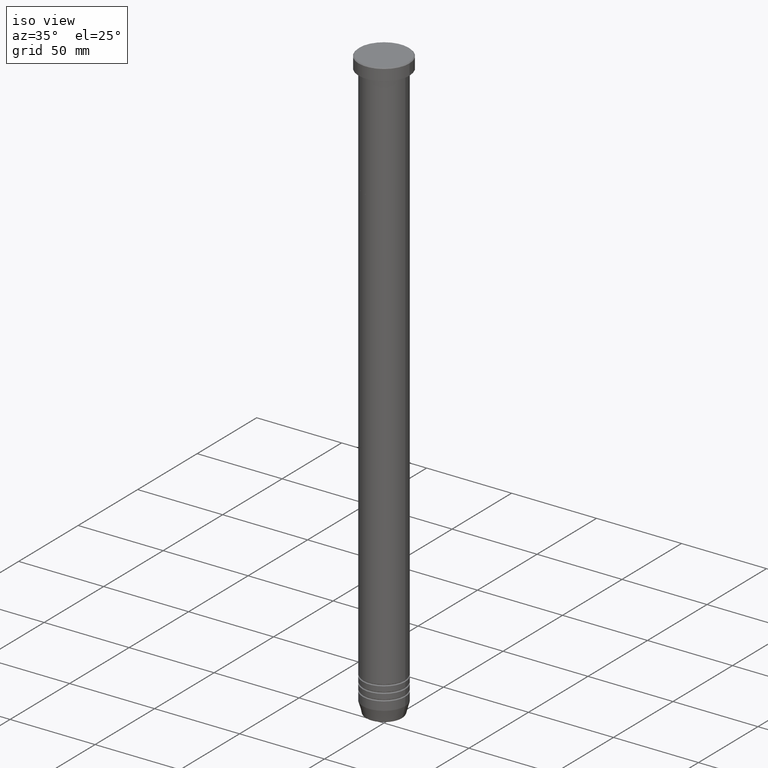
[diagram: clean part render]
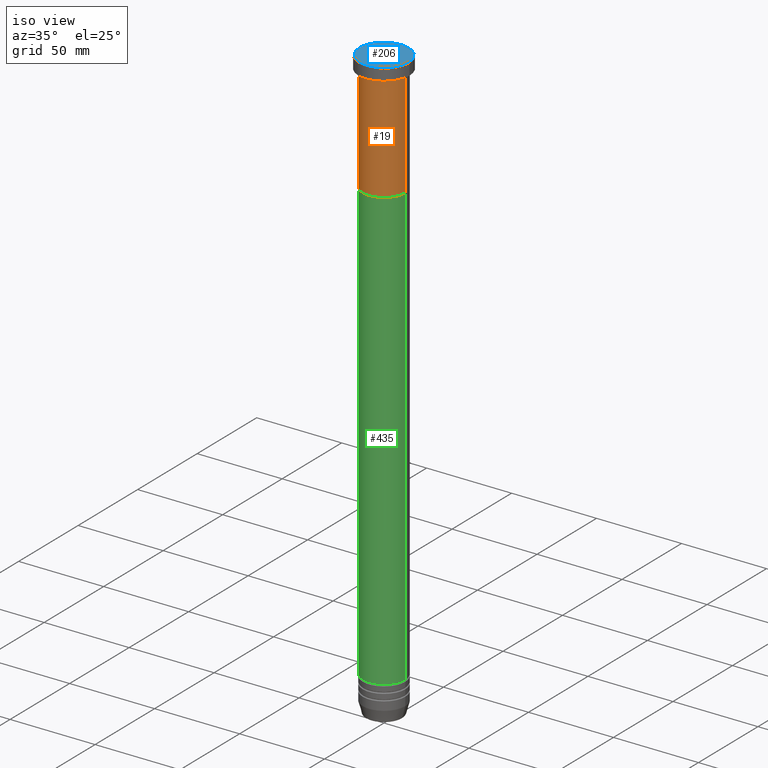
[diagram: same view with three faces highlighted in distinct colors, each labeled with its STEP entity id]
A machine part, iso view with three faces highlighted in distinct colors.
Their STEP definitions:

[orange] entity #19 — the highlighted cylindrical surface (edge-blend (fillet) strip) has radius 12.5 mm, axis along (-0, -0, 1).
#4 = EDGE_LOOP ( 'NONE', ( #1005, #618, #139, #812 ) ) ;
#7 = DIRECTION ( 'NONE',  ( -0.000000000000000000, -0.000000000000000000, 1.000000000000000000 ) ) ;
#19 = ADVANCED_FACE ( 'NONE', ( #91 ), #584, .T. ) ;
#55 = VERTEX_POINT ( 'NONE', #410 ) ;
#91 = FACE_OUTER_BOUND ( 'NONE', #4, .T. ) ;
#108 = CARTESIAN_POINT ( 'NONE',  ( 0.000000000000000000, 0.000000000000000000, 0.000000000000000000 ) ) ;
#114 = DIRECTION ( 'NONE',  ( -0.000000000000000000, -0.000000000000000000, 1.000000000000000000 ) ) ;
#119 = AXIS2_PLACEMENT_3D ( 'NONE', #108, #347, #654 ) ;
#139 = ORIENTED_EDGE ( 'NONE', *, *, #958, .T. ) ;
#140 = EDGE_CURVE ( 'NONE', #55, #511, #891, .T. ) ;
#256 = VERTEX_POINT ( 'NONE', #394 ) ;
#297 = EDGE_CURVE ( 'NONE', #256, #592, #604, .T. ) ;
#318 = DIRECTION ( 'NONE',  ( -0.000000000000000000, -0.000000000000000000, 1.000000000000000000 ) ) ;
#347 = DIRECTION ( 'NONE',  ( -0.000000000000000000, -0.000000000000000000, 1.000000000000000000 ) ) ;
#351 = AXIS2_PLACEMENT_3D ( 'NONE', #354, #672, #676 ) ;
#354 = CARTESIAN_POINT ( 'NONE',  ( 0.000000000000000000, 0.000000000000000000, -70.00000000000000000 ) ) ;
#357 = CARTESIAN_POINT ( 'NONE',  ( 12.50000000000000000, 0.000000000000000000, -70.00000000000000000 ) ) ;
#367 = VECTOR ( 'NONE', #7, 1000.000000000000000 ) ;
#378 = CARTESIAN_POINT ( 'NONE',  ( 12.50000000000000000, 0.000000000000000000, -8.000000000000000000 ) ) ;
#394 = CARTESIAN_POINT ( 'NONE',  ( -12.50000000000000000, 1.530808498934191521E-15, -8.000000000000000000 ) ) ;
#410 = CARTESIAN_POINT ( 'NONE',  ( -12.50000000000000000, 1.530808498934191521E-15, -70.00000000000000000 ) ) ;
#411 = LINE ( 'NONE', #741, #643 ) ;
#503 = LINE ( 'NONE', #912, #367 ) ;
#511 = VERTEX_POINT ( 'NONE', #357 ) ;
#584 = CYLINDRICAL_SURFACE ( 'NONE', #119, 12.50000000000000000 ) ;
#592 = VERTEX_POINT ( 'NONE', #378 ) ;
#604 = CIRCLE ( 'NONE', #632, 12.50000000000000000 ) ;
#618 = ORIENTED_EDGE ( 'NONE', *, *, #140, .T. ) ;
#632 = AXIS2_PLACEMENT_3D ( 'NONE', #723, #318, #799 ) ;
#643 = VECTOR ( 'NONE', #114, 1000.000000000000000 ) ;
#654 = DIRECTION ( 'NONE',  ( 1.000000000000000000, 0.000000000000000000, 0.000000000000000000 ) ) ;
#672 = DIRECTION ( 'NONE',  ( -0.000000000000000000, -0.000000000000000000, 1.000000000000000000 ) ) ;
#676 = DIRECTION ( 'NONE',  ( 1.000000000000000000, 0.000000000000000000, 0.000000000000000000 ) ) ;
#723 = CARTESIAN_POINT ( 'NONE',  ( 0.000000000000000000, 0.000000000000000000, -8.000000000000000000 ) ) ;
#741 = CARTESIAN_POINT ( 'NONE',  ( -12.50000000000000000, 1.530808498934191521E-15, 0.000000000000000000 ) ) ;
#799 = DIRECTION ( 'NONE',  ( 1.000000000000000000, 0.000000000000000000, 0.000000000000000000 ) ) ;
#812 = ORIENTED_EDGE ( 'NONE', *, *, #297, .F. ) ;
#891 = CIRCLE ( 'NONE', #351, 12.50000000000000000 ) ;
#912 = CARTESIAN_POINT ( 'NONE',  ( 12.50000000000000000, 0.000000000000000000, 0.000000000000000000 ) ) ;
#932 = EDGE_CURVE ( 'NONE', #55, #256, #411, .T. ) ;
#958 = EDGE_CURVE ( 'NONE', #511, #592, #503, .T. ) ;
#1005 = ORIENTED_EDGE ( 'NONE', *, *, #932, .F. ) ;

[blue] entity #206 — the highlighted planar face has unit normal (0, -0, 1).
#38 = CARTESIAN_POINT ( 'NONE',  ( 0.000000000000000000, 0.000000000000000000, 0.000000000000000000 ) ) ;
#65 = FACE_OUTER_BOUND ( 'NONE', #413, .T. ) ;
#118 = ORIENTED_EDGE ( 'NONE', *, *, #325, .T. ) ;
#165 = ORIENTED_EDGE ( 'NONE', *, *, #644, .T. ) ;
#199 = DIRECTION ( 'NONE',  ( 1.000000000000000000, 0.000000000000000000, 0.000000000000000000 ) ) ;
#206 = ADVANCED_FACE ( 'NONE', ( #65 ), #366, .T. ) ;
#312 = CARTESIAN_POINT ( 'NONE',  ( -14.50000000000001066, 0.000000000000000000, 0.000000000000000000 ) ) ;
#315 = AXIS2_PLACEMENT_3D ( 'NONE', #38, #542, #547 ) ;
#324 = VERTEX_POINT ( 'NONE', #312 ) ;
#325 = EDGE_CURVE ( 'NONE', #740, #324, #908, .T. ) ;
#366 = PLANE ( 'NONE',  #862 ) ;
#413 = EDGE_LOOP ( 'NONE', ( #165, #118 ) ) ;
#542 = DIRECTION ( 'NONE',  ( -0.000000000000000000, -0.000000000000000000, 1.000000000000000000 ) ) ;
#547 = DIRECTION ( 'NONE',  ( 1.000000000000000000, 0.000000000000000000, 0.000000000000000000 ) ) ;
#644 = EDGE_CURVE ( 'NONE', #324, #740, #779, .T. ) ;
#668 = AXIS2_PLACEMENT_3D ( 'NONE', #716, #879, #885 ) ;
#684 = CARTESIAN_POINT ( 'NONE',  ( 0.000000000000000000, 0.000000000000000000, 0.000000000000000000 ) ) ;
#716 = CARTESIAN_POINT ( 'NONE',  ( 0.000000000000000000, 0.000000000000000000, 0.000000000000000000 ) ) ;
#720 = CARTESIAN_POINT ( 'NONE',  ( 14.50000000000001066, 1.806354028742346591E-15, 0.000000000000000000 ) ) ;
#740 = VERTEX_POINT ( 'NONE', #720 ) ;
#779 = CIRCLE ( 'NONE', #315, 14.50000000000001066 ) ;
#862 = AXIS2_PLACEMENT_3D ( 'NONE', #684, #927, #199 ) ;
#879 = DIRECTION ( 'NONE',  ( -0.000000000000000000, -0.000000000000000000, 1.000000000000000000 ) ) ;
#885 = DIRECTION ( 'NONE',  ( 1.000000000000000000, 0.000000000000000000, 0.000000000000000000 ) ) ;
#908 = CIRCLE ( 'NONE', #668, 14.50000000000001066 ) ;
#927 = DIRECTION ( 'NONE',  ( 0.000000000000000000, -0.000000000000000000, 1.000000000000000000 ) ) ;

[green] entity #435 — the highlighted cylindrical surface (edge-blend (fillet) strip) has radius 12.5 mm, axis along (-0, -0, 1).
#23 = FACE_OUTER_BOUND ( 'NONE', #26, .T. ) ;
#26 = EDGE_LOOP ( 'NONE', ( #657, #817, #521, #590 ) ) ;
#32 = VERTEX_POINT ( 'NONE', #429 ) ;
#52 = CARTESIAN_POINT ( 'NONE',  ( 0.000000000000000000, 0.000000000000000000, -329.0000000000000568 ) ) ;
#54 = CARTESIAN_POINT ( 'NONE',  ( -12.49999999999999645, 1.530808498934191127E-15, 0.000000000000000000 ) ) ;
#74 = AXIS2_PLACEMENT_3D ( 'NONE', #52, #855, #1024 ) ;
#105 = DIRECTION ( 'NONE',  ( 1.000000000000000000, 0.000000000000000000, 0.000000000000000000 ) ) ;
#124 = CARTESIAN_POINT ( 'NONE',  ( -12.50000000000000000, 1.530808498934191521E-15, -70.00000000000000000 ) ) ;
#136 = LINE ( 'NONE', #54, #166 ) ;
#143 = EDGE_CURVE ( 'NONE', #994, #989, #1011, .T. ) ;
#166 = VECTOR ( 'NONE', #853, 1000.000000000000000 ) ;
#178 = DIRECTION ( 'NONE',  ( -0.000000000000000000, -0.000000000000000000, 1.000000000000000000 ) ) ;
#201 = CIRCLE ( 'NONE', #74, 12.49999999999999289 ) ;
#328 = VECTOR ( 'NONE', #797, 1000.000000000000000 ) ;
#348 = CARTESIAN_POINT ( 'NONE',  ( 12.49999999999999289, 0.000000000000000000, -329.0000000000000568 ) ) ;
#370 = AXIS2_PLACEMENT_3D ( 'NONE', #995, #944, #1031 ) ;
#422 = CYLINDRICAL_SURFACE ( 'NONE', #892, 12.49999999999999645 ) ;
#429 = CARTESIAN_POINT ( 'NONE',  ( -12.49999999999999289, 1.530808498934190930E-15, -329.0000000000000568 ) ) ;
#435 = ADVANCED_FACE ( 'NONE', ( #23 ), #422, .T. ) ;
#478 = LINE ( 'NONE', #894, #328 ) ;
#521 = ORIENTED_EDGE ( 'NONE', *, *, #809, .T. ) ;
#590 = ORIENTED_EDGE ( 'NONE', *, *, #143, .F. ) ;
#610 = EDGE_CURVE ( 'NONE', #32, #994, #136, .T. ) ;
#657 = ORIENTED_EDGE ( 'NONE', *, *, #610, .F. ) ;
#663 = CARTESIAN_POINT ( 'NONE',  ( 0.000000000000000000, 0.000000000000000000, 0.000000000000000000 ) ) ;
#797 = DIRECTION ( 'NONE',  ( -0.000000000000000000, -0.000000000000000000, 1.000000000000000000 ) ) ;
#809 = EDGE_CURVE ( 'NONE', #987, #989, #478, .T. ) ;
#817 = ORIENTED_EDGE ( 'NONE', *, *, #1042, .T. ) ;
#853 = DIRECTION ( 'NONE',  ( -0.000000000000000000, -0.000000000000000000, 1.000000000000000000 ) ) ;
#855 = DIRECTION ( 'NONE',  ( -0.000000000000000000, -0.000000000000000000, 1.000000000000000000 ) ) ;
#892 = AXIS2_PLACEMENT_3D ( 'NONE', #663, #178, #105 ) ;
#894 = CARTESIAN_POINT ( 'NONE',  ( 12.49999999999999645, 0.000000000000000000, 0.000000000000000000 ) ) ;
#944 = DIRECTION ( 'NONE',  ( -0.000000000000000000, -0.000000000000000000, 1.000000000000000000 ) ) ;
#987 = VERTEX_POINT ( 'NONE', #348 ) ;
#989 = VERTEX_POINT ( 'NONE', #991 ) ;
#991 = CARTESIAN_POINT ( 'NONE',  ( 12.50000000000000000, 0.000000000000000000, -70.00000000000000000 ) ) ;
#994 = VERTEX_POINT ( 'NONE', #124 ) ;
#995 = CARTESIAN_POINT ( 'NONE',  ( 0.000000000000000000, 0.000000000000000000, -70.00000000000000000 ) ) ;
#1011 = CIRCLE ( 'NONE', #370, 12.50000000000000000 ) ;
#1024 = DIRECTION ( 'NONE',  ( 1.000000000000000000, 0.000000000000000000, 0.000000000000000000 ) ) ;
#1031 = DIRECTION ( 'NONE',  ( 1.000000000000000000, 0.000000000000000000, 0.000000000000000000 ) ) ;
#1042 = EDGE_CURVE ( 'NONE', #32, #987, #201, .T. ) ;